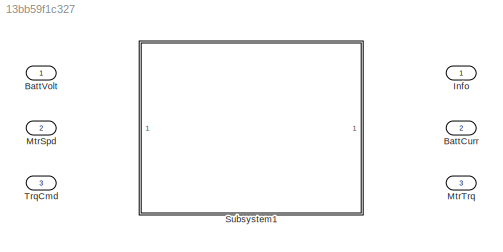
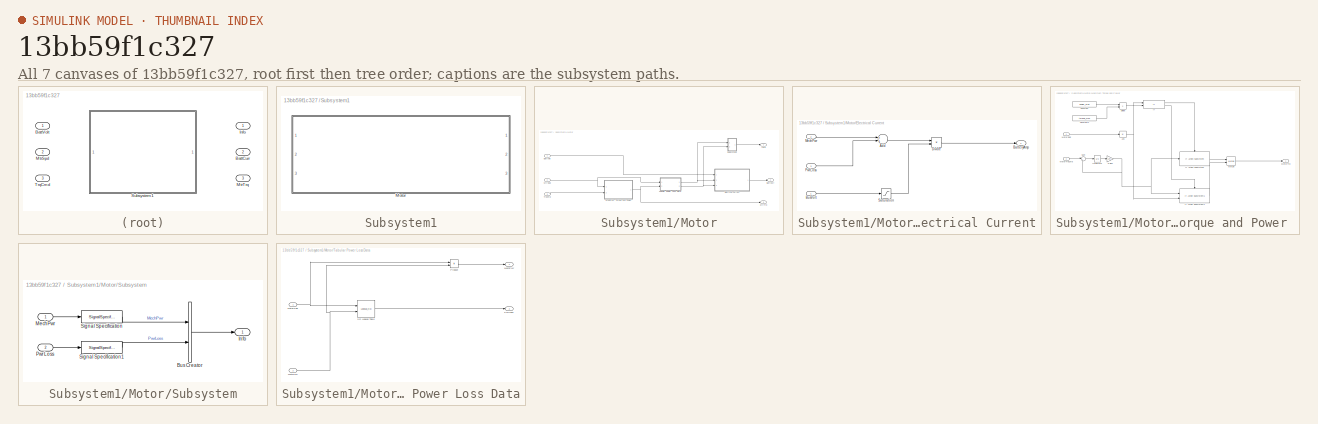
[diagram: thumbnail index - all 7 canvases of the model, root first then tree order]
MODEL slx_13bb59f1c327
KIND model
CONFIG AbsTol = auto
CONFIG EnableMultiTasking = off
CONFIG FixedStep = auto
CONFIG MaxStep = auto
CONFIG MinStep = auto
CONFIG RelTol = 1e-3
CONFIG SampleTimeConstraint = Unconstrained
CONFIG Solver = VariableStepAuto
CONFIG SolverName = VariableStepAuto
CONFIG StartTime = 0.0
CONFIG StopTime = 10.0
BLOCK [Outport] BattCurr
  IconDisplay = Port number
  Port = 2
BLOCK [Inport] BattVolt
  IconDisplay = Port number
BLOCK [Outport] Info
  IconDisplay = Port number
BLOCK [Inport] MtrSpd
  IconDisplay = Port number
  Port = 2
BLOCK [Outport] MtrTrq
  IconDisplay = Port number
  Port = 3
BLOCK [SubSystem] Subsystem1
  Ports = []
  RequestExecContextInheritance = off
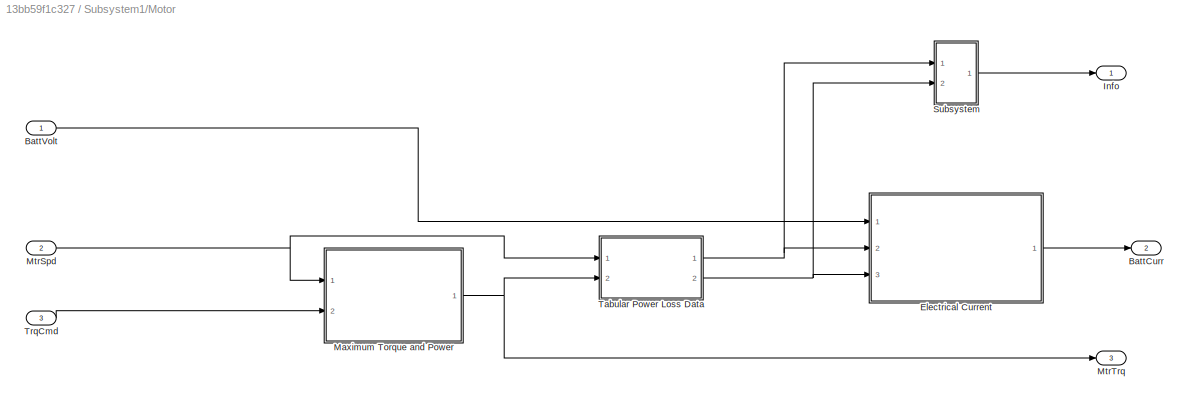
BLOCK [SubSystem] Subsystem1/Motor
  Ports = [3, 3]
  RequestExecContextInheritance = off
BLOCK [Outport] Subsystem1/Motor/BattCurr
  IconDisplay = Port number
  Port = 2
  Unit = A
BLOCK [Inport] Subsystem1/Motor/BattVolt
  IconDisplay = Port number
  Unit = V
BLOCK [SubSystem] Subsystem1/Motor/Electrical Current
  Ports = [3, 1]
  RequestExecContextInheritance = off
BLOCK [Sum] Subsystem1/Motor/Electrical Current/Add
  InputSameDT = off
  OutDataTypeStr = Inherit: Inherit via internal rule
  Ports = [2, 1]
  SaturateOnIntegerOverflow = off
BLOCK [Outport] Subsystem1/Motor/Electrical Current/BatteryAmp
  IconDisplay = Port number
BLOCK [Inport] Subsystem1/Motor/Electrical Current/BusVolt
  IconDisplay = Port number
BLOCK [Product] Subsystem1/Motor/Electrical Current/Divide
  InputSameDT = off
  Inputs = */
  OutDataTypeStr = Inherit: Inherit via internal rule
  Ports = [2, 1]
  RndMeth = Floor
  SaturateOnIntegerOverflow = off
BLOCK [Inport] Subsystem1/Motor/Electrical Current/MechPwr
  IconDisplay = Port number
  Port = 2
BLOCK [Inport] Subsystem1/Motor/Electrical Current/PwrLoss
  IconDisplay = Port number
  Port = 3
BLOCK [Saturate] Subsystem1/Motor/Electrical Current/Saturation
  InputPortMap = u0
  LowerLimit = 0.0001
  Ports = [1, 1]
  UpperLimit = Inf
BLOCK [Outport] Subsystem1/Motor/Info
  IconDisplay = Port number
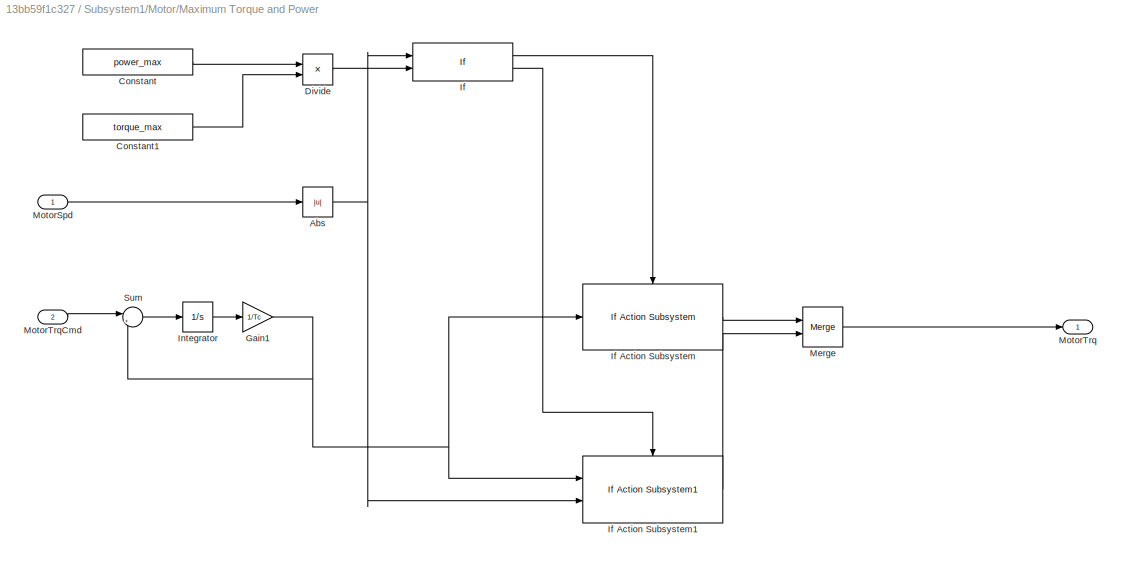
BLOCK [SubSystem] Subsystem1/Motor/Maximum Torque and Power 
  Ports = [2, 1]
  RequestExecContextInheritance = off
BLOCK [Abs] Subsystem1/Motor/Maximum Torque and Power /Abs
  SaturateOnIntegerOverflow = off
BLOCK [Constant] Subsystem1/Motor/Maximum Torque and Power /Constant
  Value = power_max
BLOCK [Constant] Subsystem1/Motor/Maximum Torque and Power /Constant1
  Value = torque_max
BLOCK [Product] Subsystem1/Motor/Maximum Torque and Power /Divide
  InputSameDT = off
  Inputs = */
  OutDataTypeStr = Inherit: Inherit via internal rule
  Ports = [2, 1]
  RndMeth = Floor
  SaturateOnIntegerOverflow = off
BLOCK [Gain] Subsystem1/Motor/Maximum Torque and Power /Gain1
  Gain = 1/Tc
  OutDataTypeStr = Inherit: Inherit via internal rule
  ParamDataTypeStr = Inherit: Inherit via internal rule
  SaturateOnIntegerOverflow = off
BLOCK [If] Subsystem1/Motor/Maximum Torque and Power /If
  IfExpression = u1 <= u2
  NumInputs = 2
  Ports = [2, 2]
BLOCK [Reference] Subsystem1/Motor/Maximum Torque and Power /If Action Subsystem  REF=autolibmappedmotorcommon/Maximum Torque and Power/If Action
Subsystem
  Ports = [1, 1, 0, 0, 0, 0, 0, 1]
  SourceBlock = autolibmappedmotorcommon/Maximum Torque and Power/If Action\nSubsystem
  SourceProductBaseCode = PW
  SourceProductName = Powertrain Blockset
  SourceType = SubSystem
BLOCK [Reference] Subsystem1/Motor/Maximum Torque and Power /If Action Subsystem1  REF=autolibmappedmotorcommon/Maximum Torque and Power/If Action
Subsystem1
  Ports = [2, 1, 0, 0, 0, 0, 0, 1]
  SourceBlock = autolibmappedmotorcommon/Maximum Torque and Power/If Action\nSubsystem1
  SourceProductBaseCode = PW
  SourceProductName = Powertrain Blockset
  SourceType = SubSystem
BLOCK [Integrator] Subsystem1/Motor/Maximum Torque and Power /Integrator
  Ports = [1, 1]
BLOCK [Merge] Subsystem1/Motor/Maximum Torque and Power /Merge
  InitialOutput = 0
  Ports = [2, 1]
BLOCK [Inport] Subsystem1/Motor/Maximum Torque and Power /MotorSpd
  IconDisplay = Port number
BLOCK [Outport] Subsystem1/Motor/Maximum Torque and Power /MotorTrq
  IconDisplay = Port number
BLOCK [Inport] Subsystem1/Motor/Maximum Torque and Power /MotorTrqCmd
  IconDisplay = Port number
  Port = 2
BLOCK [Sum] Subsystem1/Motor/Maximum Torque and Power /Sum
  IconShape = round
  InputSameDT = off
  Inputs = |+-
  OutDataTypeStr = Inherit: Inherit via internal rule
  Ports = [2, 1]
  SaturateOnIntegerOverflow = off
BLOCK [Inport] Subsystem1/Motor/MtrSpd
  IconDisplay = Port number
  Port = 2
  Unit = rad/s
BLOCK [Outport] Subsystem1/Motor/MtrTrq
  IconDisplay = Port number
  Port = 3
  Unit = N*m
BLOCK [SubSystem] Subsystem1/Motor/Subsystem
  Ports = [2, 1]
  RequestExecContextInheritance = off
BLOCK [BusCreator] Subsystem1/Motor/Subsystem/Bus Creator
  DisplayOption = bar
  InheritFromInputs = on
  Inputs = 2
  Ports = [2, 1]
BLOCK [Outport] Subsystem1/Motor/Subsystem/Info
  IconDisplay = Port number
BLOCK [Inport] Subsystem1/Motor/Subsystem/MechPwr
  IconDisplay = Port number
BLOCK [Inport] Subsystem1/Motor/Subsystem/PwrLoss
  IconDisplay = Port number
  Port = 2
BLOCK [SignalSpecification] Subsystem1/Motor/Subsystem/Signal Specification
  Unit = W
BLOCK [SignalSpecification] Subsystem1/Motor/Subsystem/Signal Specification1
  Unit = W
BLOCK [SubSystem] Subsystem1/Motor/Tabular Power Loss Data
  Ports = [2, 2]
  RequestExecContextInheritance = off
BLOCK [Lookup_n-D] Subsystem1/Motor/Tabular Power Loss Data/2-D Lookup Table
  BreakpointsForDimension1 = w_eff_bp
  BreakpointsForDimension2 = T_eff_bp
  ExtrapMethod = Clip
  InternalRulePriority = Speed
  Ports = [2, 1]
  RndMeth = Simplest
  Table = efficiency_table
  UseLastTableValue = on
BLOCK [Outport] Subsystem1/Motor/Tabular Power Loss Data/MechPwr
  IconDisplay = Port number
BLOCK [Inport] Subsystem1/Motor/Tabular Power Loss Data/MotorSpd
  IconDisplay = Port number
BLOCK [Inport] Subsystem1/Motor/Tabular Power Loss Data/MotorTrq
  IconDisplay = Port number
  Port = 2
BLOCK [Product] Subsystem1/Motor/Tabular Power Loss Data/Product
  InputSameDT = off
  OutDataTypeStr = Inherit: Inherit via internal rule
  Ports = [2, 1]
  RndMeth = Floor
  SaturateOnIntegerOverflow = off
BLOCK [Outport] Subsystem1/Motor/Tabular Power Loss Data/PwrLoss
  IconDisplay = Port number
  Port = 2
BLOCK [Inport] Subsystem1/Motor/TrqCmd
  IconDisplay = Port number
  Port = 3
  Unit = N*m
BLOCK [Inport] TrqCmd
  IconDisplay = Port number
  Port = 3
LINE Subsystem1/Motor/BattVolt:1 -> Subsystem1/Motor/Electrical Current:1
LINE Subsystem1/Motor/Electrical Current/Add:1 -> Subsystem1/Motor/Electrical Current/Divide:1
LINE Subsystem1/Motor/Electrical Current/BusVolt:1 -> Subsystem1/Motor/Electrical Current/Saturation:1
LINE Subsystem1/Motor/Electrical Current/Divide:1 -> Subsystem1/Motor/Electrical Current/BatteryAmp:1
LINE Subsystem1/Motor/Electrical Current/MechPwr:1 -> Subsystem1/Motor/Electrical Current/Add:1
LINE Subsystem1/Motor/Electrical Current/PwrLoss:1 -> Subsystem1/Motor/Electrical Current/Add:2
LINE Subsystem1/Motor/Electrical Current/Saturation:1 -> Subsystem1/Motor/Electrical Current/Divide:2
LINE Subsystem1/Motor/Electrical Current:1 -> Subsystem1/Motor/BattCurr:1
NET Subsystem1/Motor/Maximum Torque and Power /Abs:1 -> Subsystem1/Motor/Maximum Torque and Power /If Action Subsystem1:2, Subsystem1/Motor/Maximum Torque and Power /If:1
LINE Subsystem1/Motor/Maximum Torque and Power /Constant1:1 -> Subsystem1/Motor/Maximum Torque and Power /Divide:2
LINE Subsystem1/Motor/Maximum Torque and Power /Constant:1 -> Subsystem1/Motor/Maximum Torque and Power /Divide:1
LINE Subsystem1/Motor/Maximum Torque and Power /Divide:1 -> Subsystem1/Motor/Maximum Torque and Power /If:2
NET Subsystem1/Motor/Maximum Torque and Power /Gain1:1 -> Subsystem1/Motor/Maximum Torque and Power /If Action Subsystem1:1, Subsystem1/Motor/Maximum Torque and Power /If Action Subsystem:1, Subsystem1/Motor/Maximum Torque and Power /Sum:2
LINE Subsystem1/Motor/Maximum Torque and Power /If Action Subsystem1:1 -> Subsystem1/Motor/Maximum Torque and Power /Merge:2
LINE Subsystem1/Motor/Maximum Torque and Power /If Action Subsystem:1 -> Subsystem1/Motor/Maximum Torque and Power /Merge:1
LINE Subsystem1/Motor/Maximum Torque and Power /If:1 -> Subsystem1/Motor/Maximum Torque and Power /If Action Subsystem:ifaction
LINE Subsystem1/Motor/Maximum Torque and Power /If:2 -> Subsystem1/Motor/Maximum Torque and Power /If Action Subsystem1:ifaction
LINE Subsystem1/Motor/Maximum Torque and Power /Integrator:1 -> Subsystem1/Motor/Maximum Torque and Power /Gain1:1
LINE Subsystem1/Motor/Maximum Torque and Power /Merge:1 -> Subsystem1/Motor/Maximum Torque and Power /MotorTrq:1
LINE Subsystem1/Motor/Maximum Torque and Power /MotorSpd:1 -> Subsystem1/Motor/Maximum Torque and Power /Abs:1
LINE Subsystem1/Motor/Maximum Torque and Power /MotorTrqCmd:1 -> Subsystem1/Motor/Maximum Torque and Power /Sum:1
LINE Subsystem1/Motor/Maximum Torque and Power /Sum:1 -> Subsystem1/Motor/Maximum Torque and Power /Integrator:1
NET Subsystem1/Motor/Maximum Torque and Power :1 -> Subsystem1/Motor/MtrTrq:1, Subsystem1/Motor/Tabular Power Loss Data:2
NET Subsystem1/Motor/MtrSpd:1 -> Subsystem1/Motor/Maximum Torque and Power :1, Subsystem1/Motor/Tabular Power Loss Data:1
LINE Subsystem1/Motor/Subsystem/Bus Creator:1 -> Subsystem1/Motor/Subsystem/Info:1
LINE Subsystem1/Motor/Subsystem/MechPwr:1 -> Subsystem1/Motor/Subsystem/Signal Specification:1
LINE Subsystem1/Motor/Subsystem/PwrLoss:1 -> Subsystem1/Motor/Subsystem/Signal Specification1:1
LINE Subsystem1/Motor/Subsystem/Signal Specification1:1 -> Subsystem1/Motor/Subsystem/Bus Creator:2
LINE Subsystem1/Motor/Subsystem/Signal Specification:1 -> Subsystem1/Motor/Subsystem/Bus Creator:1
LINE Subsystem1/Motor/Subsystem:1 -> Subsystem1/Motor/Info:1
LINE Subsystem1/Motor/Tabular Power Loss Data/2-D Lookup Table:1 -> Subsystem1/Motor/Tabular Power Loss Data/PwrLoss:1
NET Subsystem1/Motor/Tabular Power Loss Data/MotorSpd:1 -> Subsystem1/Motor/Tabular Power Loss Data/2-D Lookup Table:1, Subsystem1/Motor/Tabular Power Loss Data/Product:1
NET Subsystem1/Motor/Tabular Power Loss Data/MotorTrq:1 -> Subsystem1/Motor/Tabular Power Loss Data/2-D Lookup Table:2, Subsystem1/Motor/Tabular Power Loss Data/Product:2
LINE Subsystem1/Motor/Tabular Power Loss Data/Product:1 -> Subsystem1/Motor/Tabular Power Loss Data/MechPwr:1
NET Subsystem1/Motor/Tabular Power Loss Data:1 -> Subsystem1/Motor/Electrical Current:2, Subsystem1/Motor/Subsystem:1
NET Subsystem1/Motor/Tabular Power Loss Data:2 -> Subsystem1/Motor/Electrical Current:3, Subsystem1/Motor/Subsystem:2
LINE Subsystem1/Motor/TrqCmd:1 -> Subsystem1/Motor/Maximum Torque and Power :2
note: NET lines group one-source signal fan-out (src -> all destinations, sorted); 1:1 wires keep LINE
